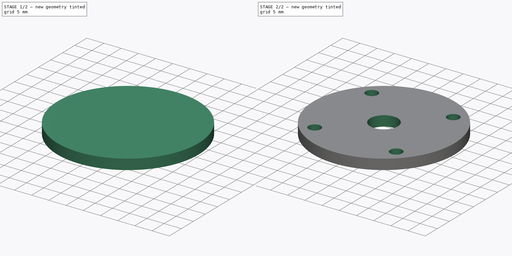
[diagram: build sequence overview — one tinted view per stage of 2, left to right]
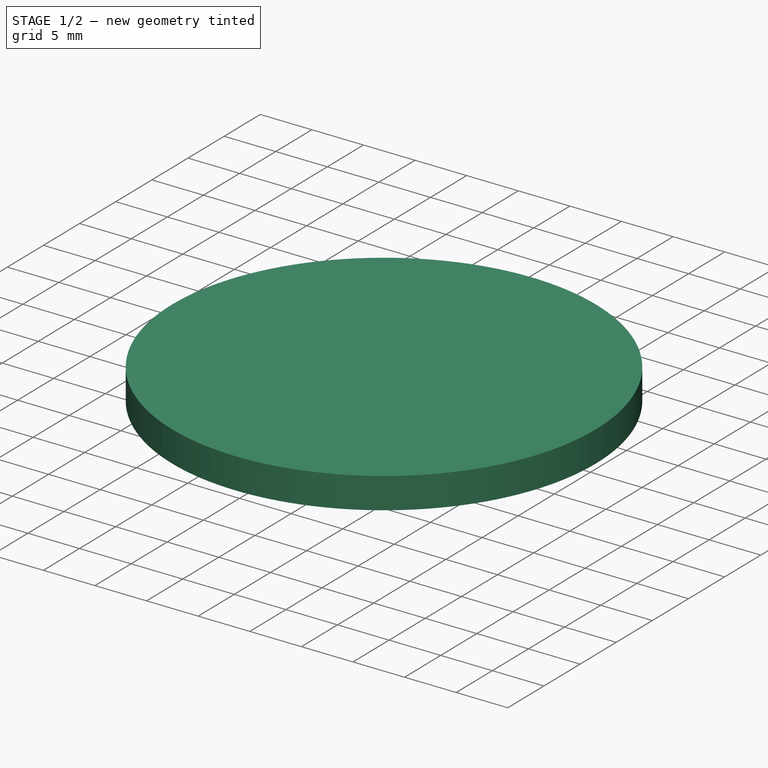
[diagram: stage 1 of 2 — iso view after this stage's code; geometry added in this stage tinted green]
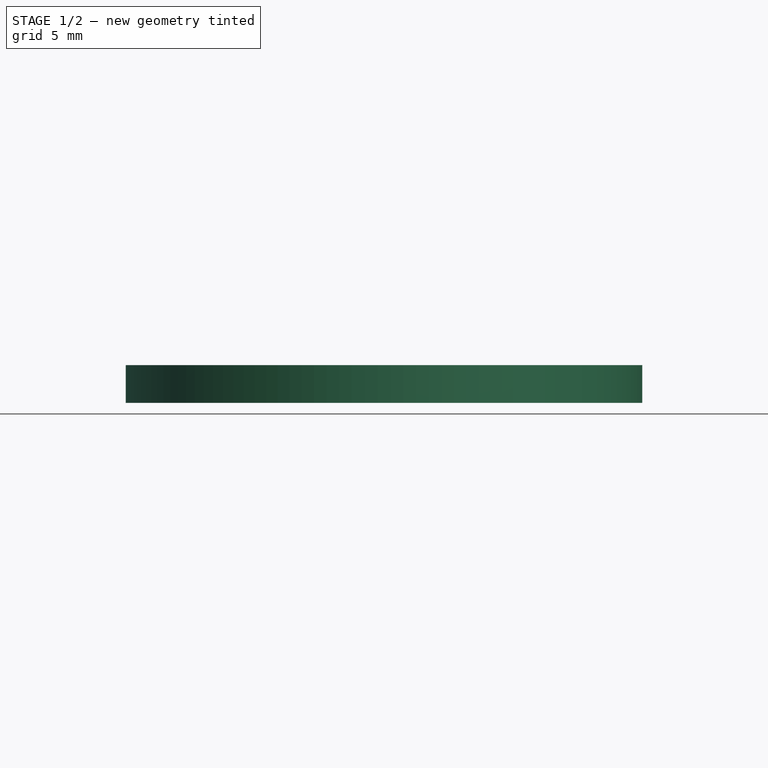
[diagram: stage 1 of 2 — front view after this stage's code; geometry added in this stage tinted green]
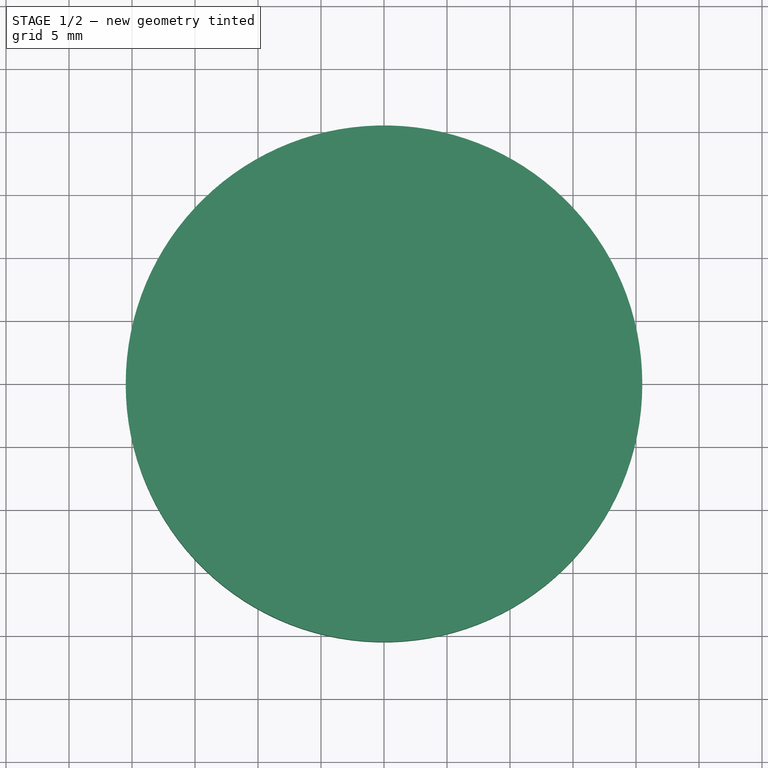
[diagram: stage 1 of 2 — top view after this stage's code; geometry added in this stage tinted green]
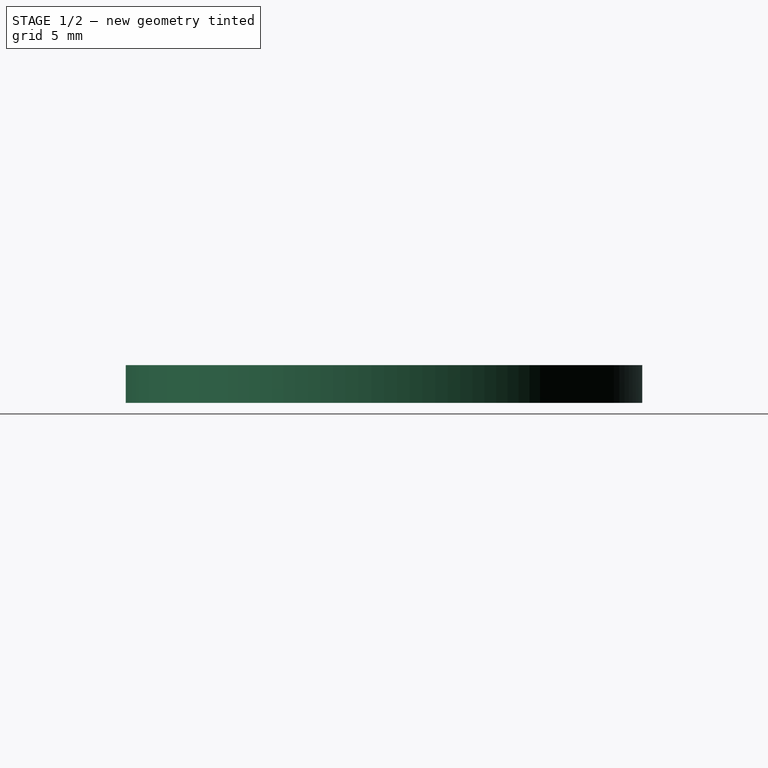
[diagram: stage 1 of 2 — right view after this stage's code; geometry added in this stage tinted green]
FCSTD DOCUMENT  (FreeCAD 1.0R39285 (Git))
Label: motor_mount_test
License: All rights reserved
LicenseURL: http://en.wikipedia.org/wiki/All_rights_reserved
objects: Sketcher::SketchObject×2, Spreadsheet::Sheet×1, PartDesign::Pad×1, PartDesign::Pocket×1, PartDesign::Body×1
note: 11 computed .brp shape members not serialized (recipe doc carries the construction recipe); baked Part::Feature solids carry a one-line shape summary decoded from their .brp

FEATURE [Sketcher::SketchObject] Sketch  label="motor_mnt"
  ArcFitTolerance = 1e-06
  AttachmentSupport = -> [XY_Plane]
  FullyConstrained = true
  MakeInternals = false
  MapMode = 5
  expr: Constraints[1] = Spreadsheet.offset_x
  expr: Constraints[2] = Spreadsheet.offset_y
  sketch-geometry (1):
    g0: Circle CenterX=40 CenterY=40 CenterZ=0 NormalX=0 NormalY=0 NormalZ=1 AngleXU=0 Radius=20.5
  constraints (3):
    c: Diameter(g0) = 41
    c: DistanceX(g-1,g0) = 40
    c: DistanceY(g-1,g0) = 40
FEATURE [Sketcher::SketchObject] Sketch001  label="motor_mnt_drill_holes"
  ArcFitTolerance = 1e-06
  AttachmentSupport = -> [XY_Plane]
  FullyConstrained = true
  MakeInternals = false
  MapMode = 5
  expr: Constraints[11] = Spreadsheet.diag_width
  expr: Constraints[12] = sqrt(Spreadsheet.diag_width / 2 * Spreadsheet.diag_width / 2 * 2)
  expr: Constraints[13] = Spreadsheet.diag_width / 2
  expr: Constraints[14] = Spreadsheet.diag_width / 2
  expr: Constraints[1] = Spreadsheet.offset_x
  expr: Constraints[2] = Spreadsheet.offset_y
  sketch-geometry (5):
    g0: Circle CenterX=40 CenterY=40 CenterZ=0 NormalX=0 NormalY=0 NormalZ=1 AngleXU=0 Radius=4
    g1: Circle CenterX=28.156 CenterY=28.156 CenterZ=0 NormalX=0 NormalY=0 NormalZ=1 AngleXU=0 Radius=1.75
    g2: Circle CenterX=51.844 CenterY=28.156 CenterZ=0 NormalX=0 NormalY=0 NormalZ=1 AngleXU=0 Radius=1.75
    g3: Circle CenterX=51.844 CenterY=51.844 CenterZ=0 NormalX=0 NormalY=0 NormalZ=1 AngleXU=0 Radius=1.75
    g4: Circle CenterX=28.156 CenterY=51.844 CenterZ=0 NormalX=0 NormalY=0 NormalZ=1 AngleXU=0 Radius=1.75
  constraints (15):
    c: Diameter(g0) = 8
    c: DistanceX(g-1,g0) = 40
    c: DistanceY(g-1,g0) = 40
    c: Diameter(g4) = 3.5
    c: Equal(g2,g3)
    c: Equal(g3,g4)
    c: Equal(g4,g1)
    c: Vertical(g4,g1)
    c: Vertical(g3,g2)
    c: Horizontal(g4,g3)
    c: Horizontal(g1,g2)
    c: Distance(g3,g1) = 33.5
    c: DistanceX(g1,g2) = 23.6881
    c: Distance(g3,g0) = 16.75
    c: Distance(g4,g0) = 16.75
FEATURE [Spreadsheet::Sheet] Spreadsheet
  cells = A1='offset_x; B1(offset_x)=40; A2='offset_y; B2(offset_y)=40; A3='diag_width; B3(diag_width)=33.5
FEATURE [PartDesign::Pad] Pad
  Direction = (0,0,1)
  Length = 3
  Length2 = 10
  Profile = -> Sketch
  ReferenceAxis = -> Sketch [N_Axis]
  Suppressed = false
  Type = 0
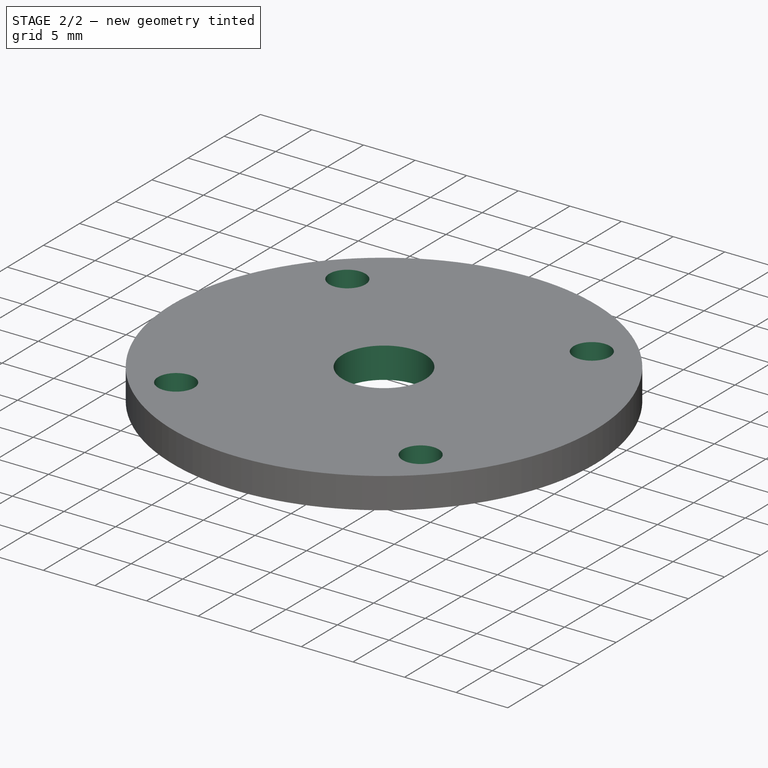
[diagram: stage 2 of 2 — iso view after this stage's code; geometry added in this stage tinted green]
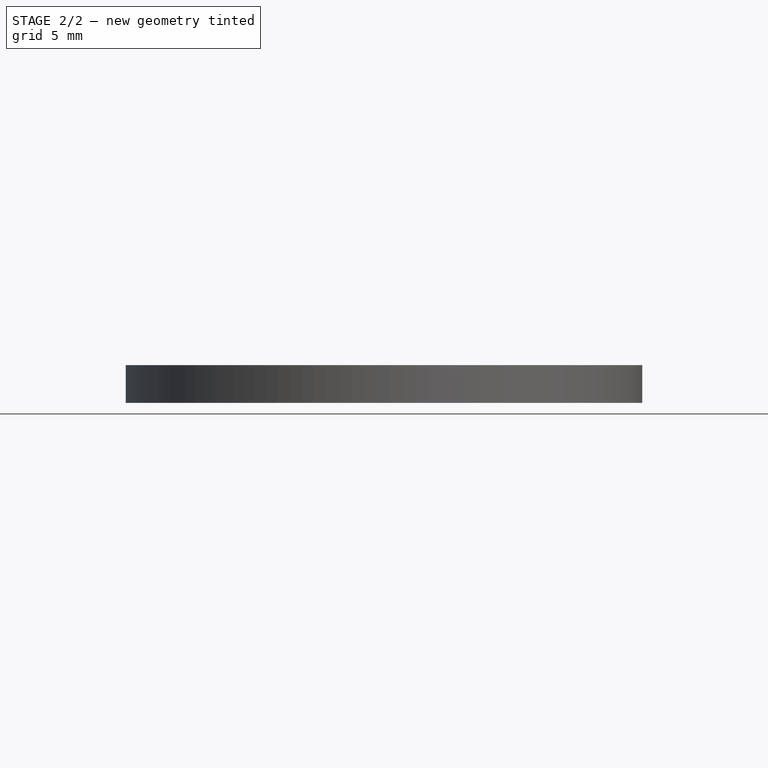
[diagram: stage 2 of 2 — front view after this stage's code; geometry added in this stage tinted green]
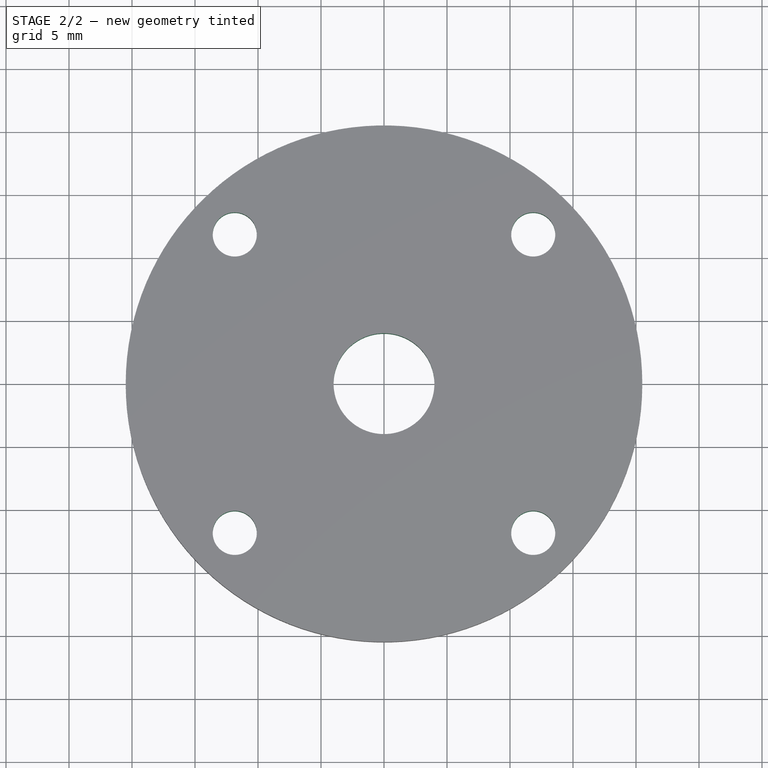
[diagram: stage 2 of 2 — top view after this stage's code; geometry added in this stage tinted green]
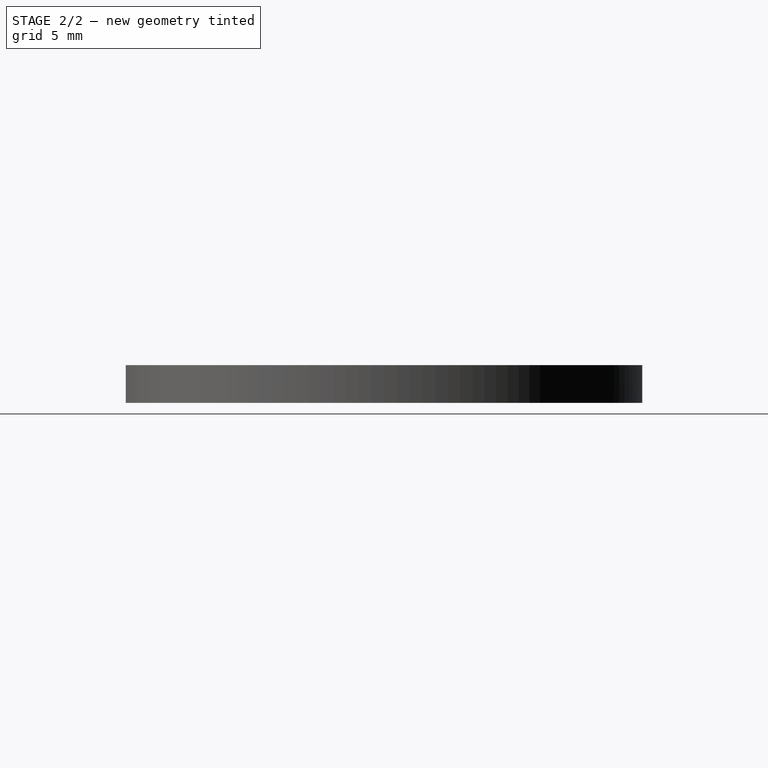
[diagram: stage 2 of 2 — right view after this stage's code; geometry added in this stage tinted green]
FEATURE [PartDesign::Pocket] Pocket
  BaseFeature = -> Pad
  Direction = (0,0,-1)
  Length = 5
  Length2 = 5
  Profile = -> Sketch001
  ReferenceAxis = -> Sketch001 [N_Axis]
  Reversed = true
  Suppressed = false
  Type = 1
FEATURE [PartDesign::Body] Body
  AllowCompound = false
  Group = -> [Sketch,Sketch001,Pad,Pocket]
  Origin = -> Origin
  Tip = -> Pocket
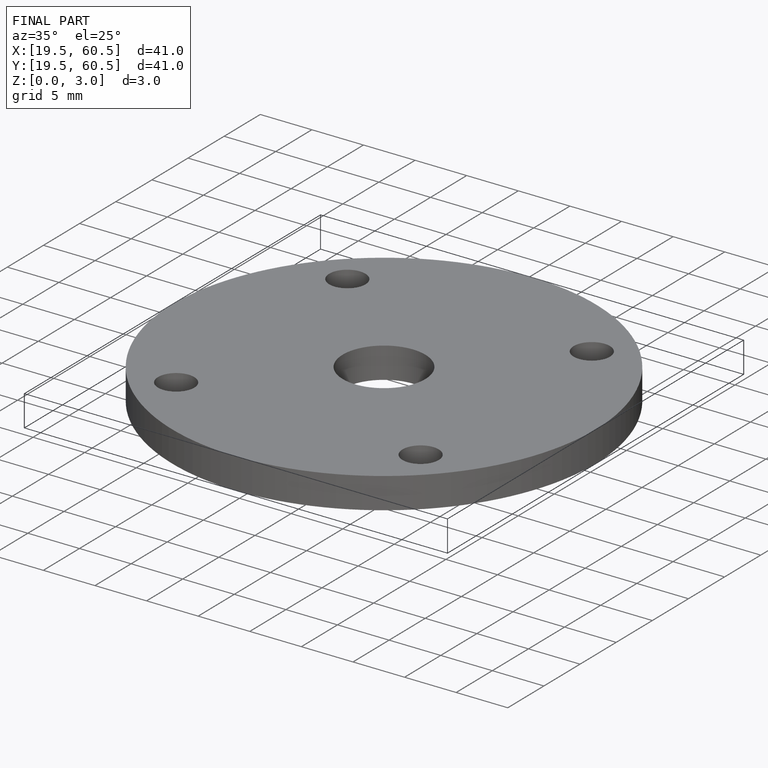
[diagram: finished part — iso view with bounding-box wireframe]
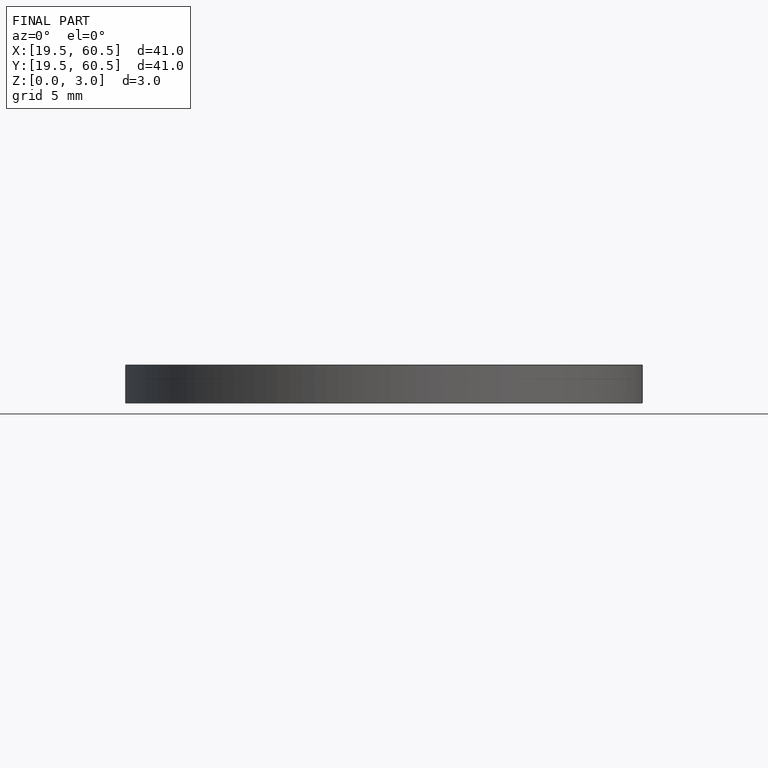
[diagram: finished part — front view with bounding-box wireframe]
